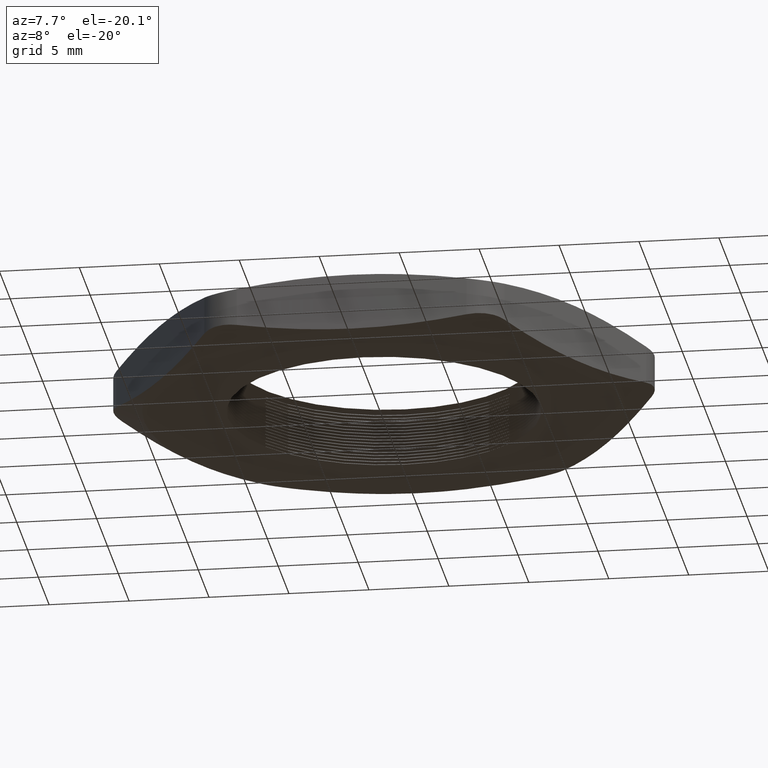
[diagram: clean part render]
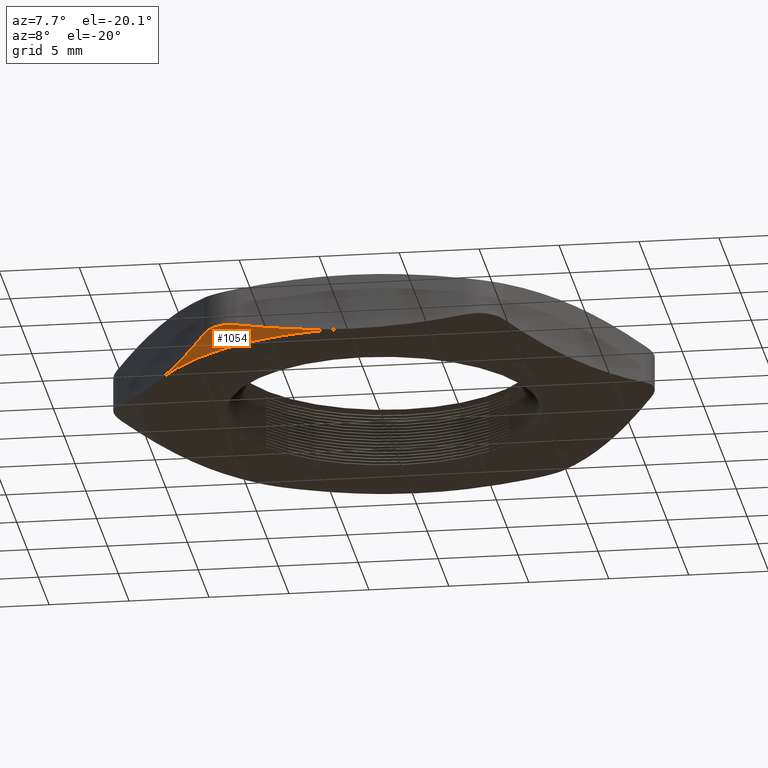
[diagram: same view with one face highlighted and labeled with its STEP entity id]
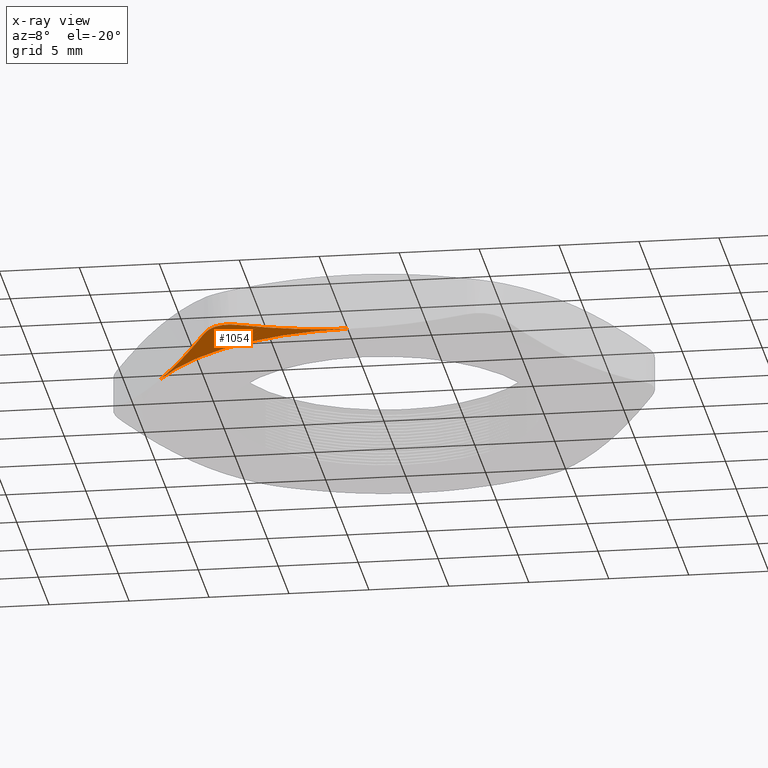
[diagram: x-ray of the same camera — body ghosted, the highlighted face saturated]
A machine part, auxiliary view. The second image highlights one B-rep face of the part: STEP entity #1054.
The next image is the same camera in x-ray: the body ghosted, the highlighted face saturated — about 0% of this face is hidden behind the body in this view.
In plain terms, the highlighted conical surface has half-angle 70 deg.
Its self-contained STEP definition (entity closure, byte-faithful):
#746 = VERTEX_POINT ( 'NONE', #2019 ) ;
#758 = EDGE_CURVE ( 'NONE', #746, #764, #2038, .T. ) ;
#764 = VERTEX_POINT ( 'NONE', #2076 ) ;
#783 = VERTEX_POINT ( 'NONE', #2092 ) ;
#866 = EDGE_CURVE ( 'NONE', #867, #783, #2283, .T. ) ;
#867 = VERTEX_POINT ( 'NONE', #2331 ) ;
#870 = EDGE_CURVE ( 'NONE', #867, #764, #2330, .T. ) ;
#973 = EDGE_CURVE ( 'NONE', #783, #746, #2584, .T. ) ;
#1054 = ADVANCED_FACE ( 'NONE', ( #2654 ), #2713, .T. ) ;
#1055 = EDGE_LOOP ( 'NONE', ( #1056, #1057, #1058, #1059 ) ) ;
#1056 = ORIENTED_EDGE ( 'NONE', *, *, #758, .T. ) ;
#1057 = ORIENTED_EDGE ( 'NONE', *, *, #870, .F. ) ;
#1058 = ORIENTED_EDGE ( 'NONE', *, *, #866, .T. ) ;
#1059 = ORIENTED_EDGE ( 'NONE', *, *, #973, .T. ) ;
#2019 = CARTESIAN_POINT ( 'NONE',  ( 0.0000000000000000000, -0.5899999999999999700, 0.0000000000000000000 ) ) ;
#2031 = CARTESIAN_POINT ( 'NONE',  ( -0.09417343624590549000, -0.5899999999999998600, 0.002075683217144505500 ) ) ;
#2032 = CARTESIAN_POINT ( 'NONE',  ( -0.04704775606604717800, -0.5899999999999997500, -5.027173889708099800E-017 ) ) ;
#2033 = CARTESIAN_POINT ( 'NONE',  ( 0.0000000000000000000, -0.5899999999999999700, 0.0000000000000000000 ) ) ;
#2038 = B_SPLINE_CURVE_WITH_KNOTS ( 'NONE', 3,
 ( #2033, #2032, #2031, #2082, #2081, #2080 ),
 .UNSPECIFIED., .F., .F.,
 ( 4, 2, 4 ),
 ( 0.03721477544052116700, 0.04081988234232052800, 0.04442498924411988900 ),
 .UNSPECIFIED. ) ;
#2063 = CARTESIAN_POINT ( 'NONE',  ( -0.5109549882328188200, -0.2949999999999997100, 0.0000000000000000000 ) ) ;
#2076 = CARTESIAN_POINT ( 'NONE',  ( -0.2829016319029168400, -0.5899999999999998600, 0.02341019581624020900 ) ) ;
#2080 = CARTESIAN_POINT ( 'NONE',  ( -0.2829016319029168400, -0.5899999999999998600, 0.02341019581624020900 ) ) ;
#2081 = CARTESIAN_POINT ( 'NONE',  ( -0.2359568793644978300, -0.5899999999999998600, 0.01602267268240488100 ) ) ;
#2082 = CARTESIAN_POINT ( 'NONE',  ( -0.1885694990668102500, -0.5899999999999997500, 0.01008152364514498800 ) ) ;
#2092 = CARTESIAN_POINT ( 'NONE',  ( -0.5109549882328188200, -0.2949999999999997100, 0.0000000000000000000 ) ) ;
#2273 = CARTESIAN_POINT ( 'NONE',  ( -0.4873798522409092400, -0.3358333333333331500, -1.393936110048415700E-017 ) ) ;
#2274 = CARTESIAN_POINT ( 'NONE',  ( -0.4638047162489993800, -0.3766666666666663700, 0.002084342655727961800 ) ) ;
#2275 = CARTESIAN_POINT ( 'NONE',  ( -0.4166544442651802200, -0.4583333333333332600, 0.01008632702185037500 ) ) ;
#2276 = CARTESIAN_POINT ( 'NONE',  ( -0.3930793082732703700, -0.4991666666666665400, 0.01599033084279023400 ) ) ;
#2277 = CARTESIAN_POINT ( 'NONE',  ( -0.3695041722813606800, -0.5399999999999998100, 0.02341019581624020200 ) ) ;
#2283 = B_SPLINE_CURVE_WITH_KNOTS ( 'NONE', 3,
 ( #2277, #2276, #2275, #2274, #2273, #2063 ),
 .UNSPECIFIED., .F., .F.,
 ( 4, 2, 4 ),
 ( 2.309401076740175100E-007, 0.003593081665274715700, 0.007185932390441757800 ),
 .UNSPECIFIED. ) ;
#2317 = CARTESIAN_POINT ( 'NONE',  ( -0.2829016319029168400, -0.5899999999999998600, 0.02341019581624020900 ) ) ;
#2318 = CARTESIAN_POINT ( 'NONE',  ( -0.2916344918958208600, -0.5899999999999998600, 0.02478445389054417500 ) ) ;
#2319 = CARTESIAN_POINT ( 'NONE',  ( -0.3003476335038807200, -0.5888494143445509600, 0.02583072577494056200 ) ) ;
#2320 = CARTESIAN_POINT ( 'NONE',  ( -0.3171431553112575900, -0.5843561750114829600, 0.02723072464723467700 ) ) ;
#2321 = CARTESIAN_POINT ( 'NONE',  ( -0.3253985704520013200, -0.5809398279768190900, 0.02759157629509180100 ) ) ;
#2322 = CARTESIAN_POINT ( 'NONE',  ( -0.3404977336752634800, -0.5722115025962155600, 0.02758867814827619500 ) ) ;
#2323 = CARTESIAN_POINT ( 'NONE',  ( -0.3475344738540590000, -0.5668041991354780800, 0.02722925493228604800 ) ) ;
#2324 = CARTESIAN_POINT ( 'NONE',  ( -0.3598709312914905000, -0.5544361405979253400, 0.02581793026235217800 ) ) ;
#2325 = CARTESIAN_POINT ( 'NONE',  ( -0.3651381384351339300, -0.5475621924492303200, 0.02478432920913486600 ) ) ;
#2326 = CARTESIAN_POINT ( 'NONE',  ( -0.3695041722813606800, -0.5399999999999998100, 0.02341019581624020200 ) ) ;
#2330 = B_SPLINE_CURVE_WITH_KNOTS ( 'NONE', 3,
 ( #2326, #2325, #2324, #2323, #2322, #2321, #2320, #2319, #2318, #2317 ),
 .UNSPECIFIED., .F., .F.,
 ( 4, 2, 2, 2, 4 ),
 ( 2.305283928984744800E-007, 0.0006644491919588646100, 0.001328667855524830600, 0.001992886519090796500, 0.002657105182656765000 ),
 .UNSPECIFIED. ) ;
#2331 = CARTESIAN_POINT ( 'NONE',  ( -0.3695041722813606800, -0.5399999999999998100, 0.02341019581624020200 ) ) ;
#2580 = DIRECTION ( 'NONE',  ( 1.000000000000000000, 0.0000000000000000000, 0.0000000000000000000 ) ) ;
#2581 = DIRECTION ( 'NONE',  ( -0.0000000000000000000, 0.0000000000000000000, 1.000000000000000000 ) ) ;
#2582 = CARTESIAN_POINT ( 'NONE',  ( 0.0000000000000000000, 0.0000000000000000000, 0.0000000000000000000 ) ) ;
#2583 = AXIS2_PLACEMENT_3D ( 'NONE', #2582, #2581, #2580 ) ;
#2584 = CIRCLE ( 'NONE', #2583, 0.5899999999999999700 ) ;
#2654 = FACE_OUTER_BOUND ( 'NONE', #1055, .T. ) ;
#2708 = DIRECTION ( 'NONE',  ( -1.000000000000000000, 0.0000000000000000000, 0.0000000000000000000 ) ) ;
#2709 = DIRECTION ( 'NONE',  ( 0.0000000000000000000, 0.0000000000000000000, 1.000000000000000000 ) ) ;
#2710 = CARTESIAN_POINT ( 'NONE',  ( 0.0000000000000000000, 0.0000000000000000000, 0.0000000000000000000 ) ) ;
#2711 = AXIS2_PLACEMENT_3D ( 'NONE', #2710, #2709, #2708 ) ;
#2713 = CONICAL_SURFACE ( 'NONE', #2711, 0.5899999999999999700, 1.221730476396033500 ) ;